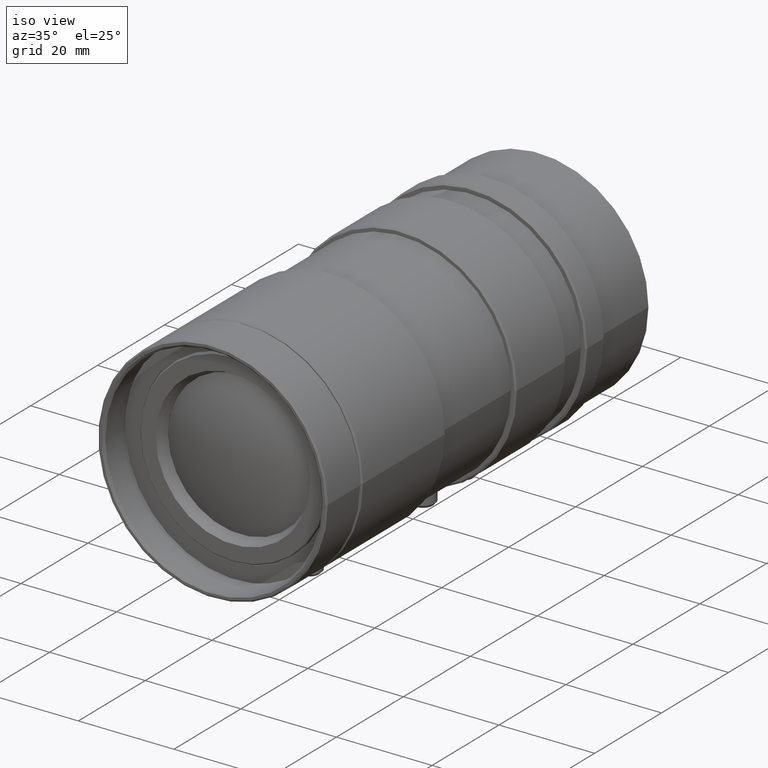
[diagram: clean part render]
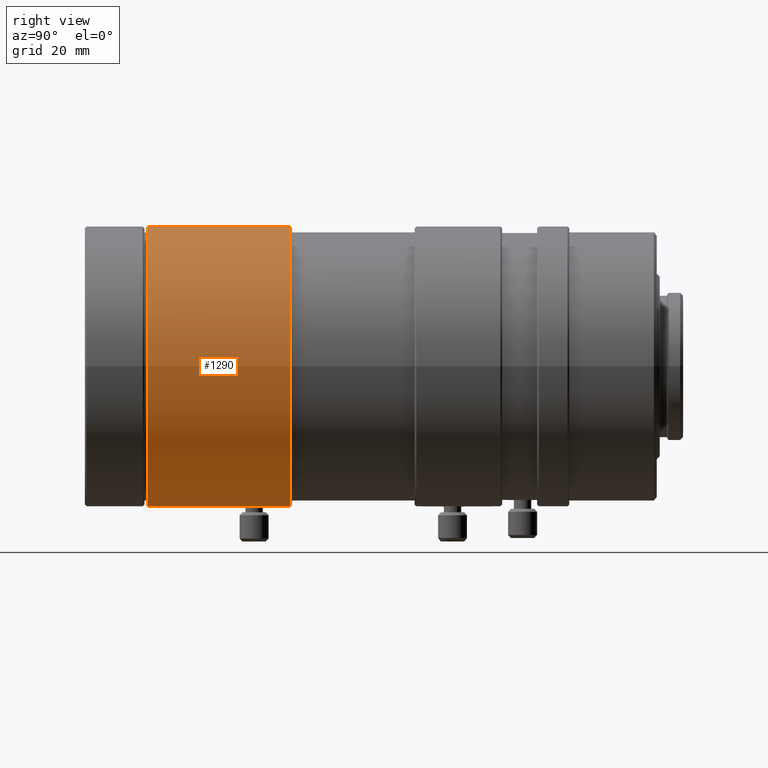
[diagram: tour spotlight — one face highlighted and labeled with its STEP entity id]
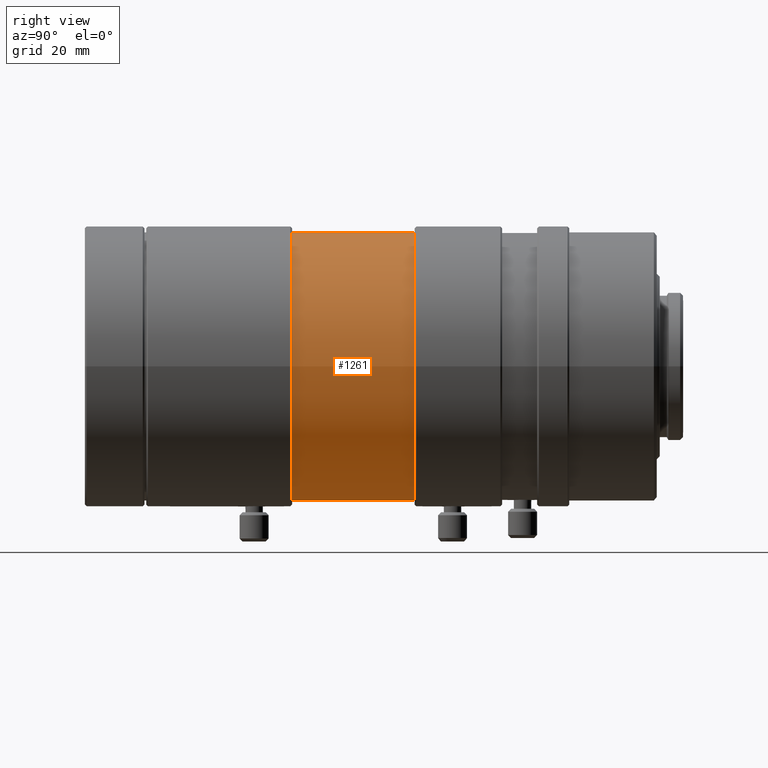
[diagram: tour spotlight — one face highlighted and labeled with its STEP entity id]
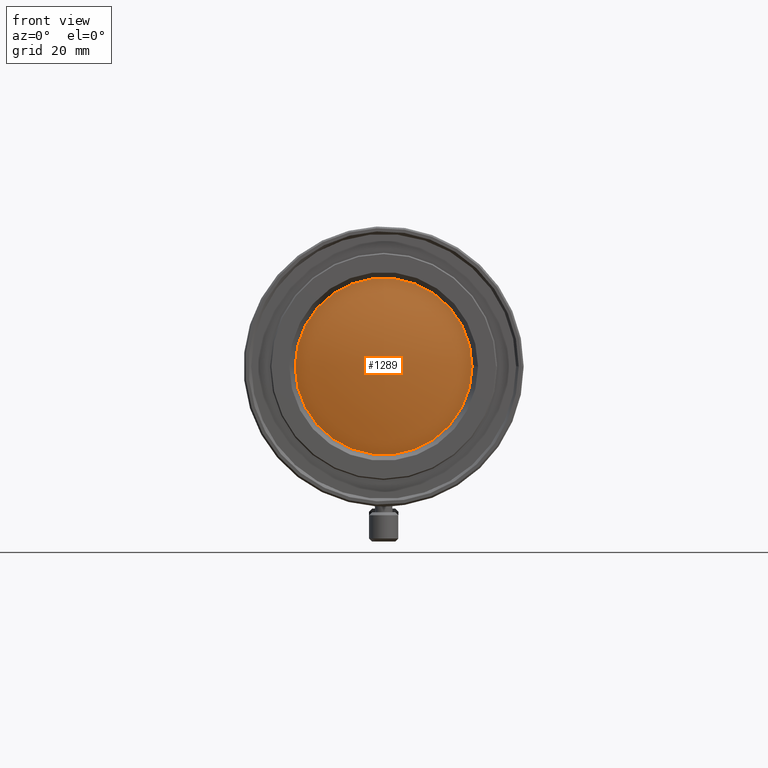
[diagram: tour spotlight — one face highlighted and labeled with its STEP entity id]
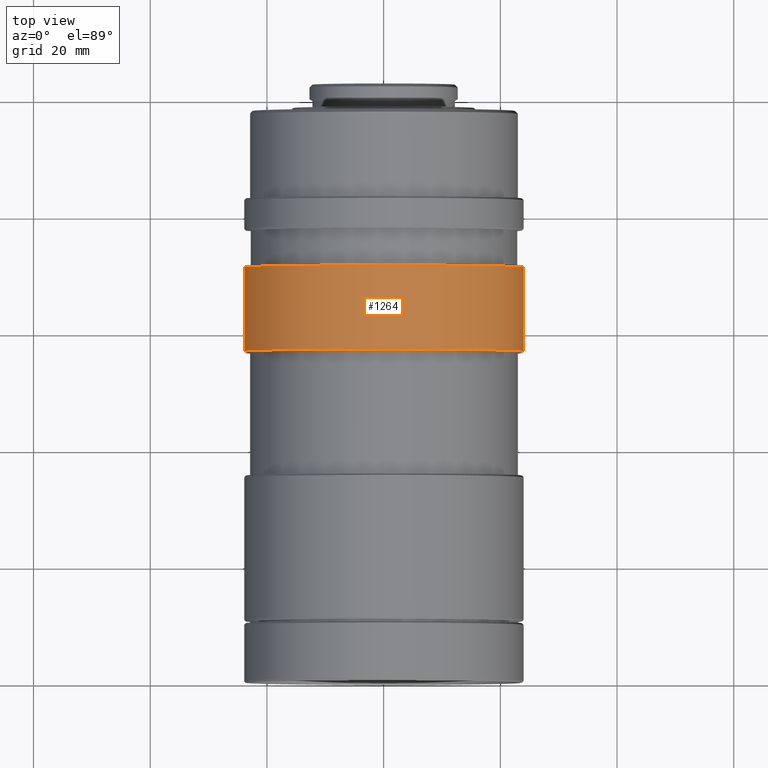
[diagram: tour spotlight — one face highlighted and labeled with its STEP entity id]
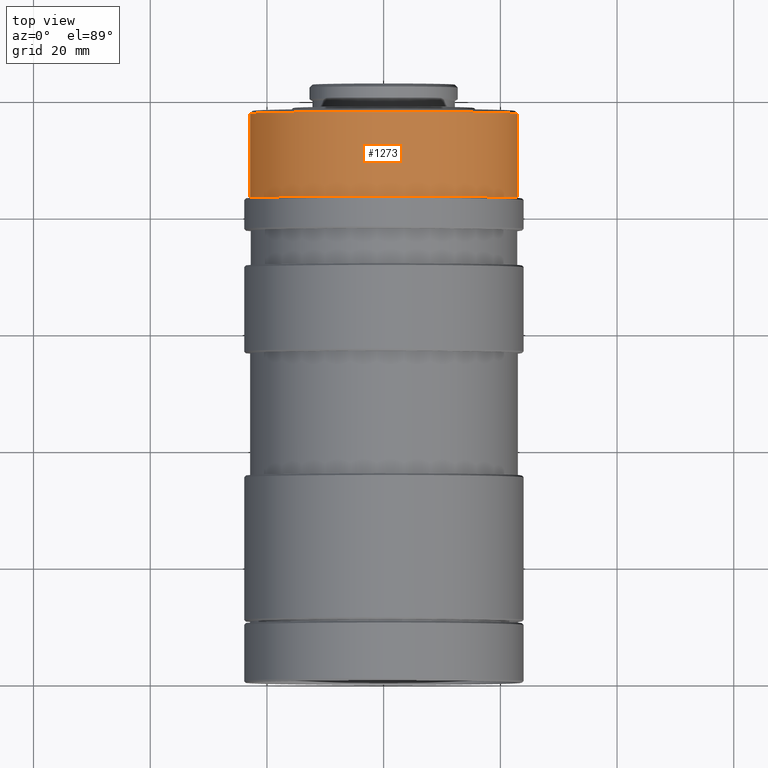
[diagram: tour spotlight — one face highlighted and labeled with its STEP entity id]
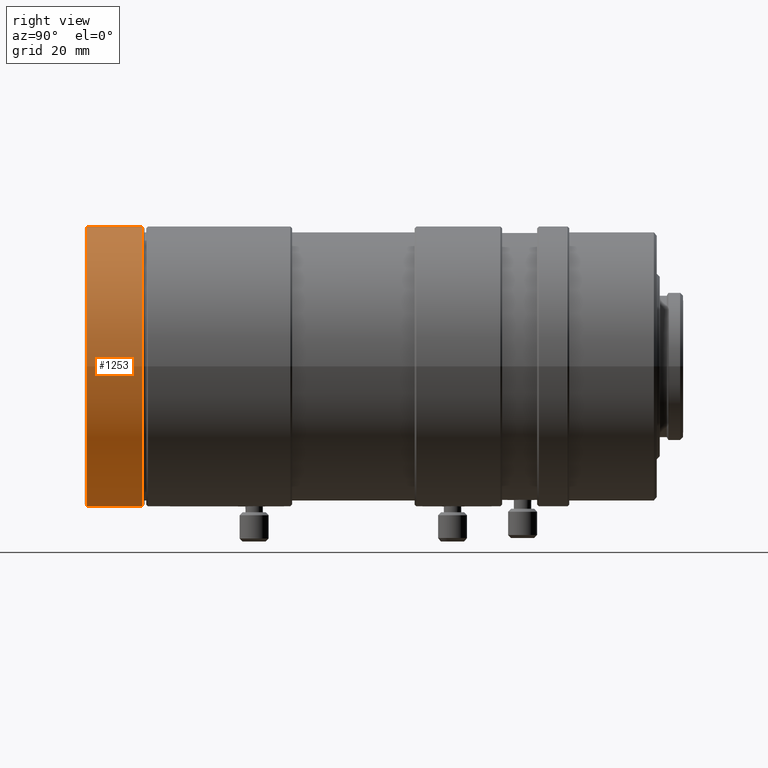
[diagram: tour spotlight — one face highlighted and labeled with its STEP entity id]
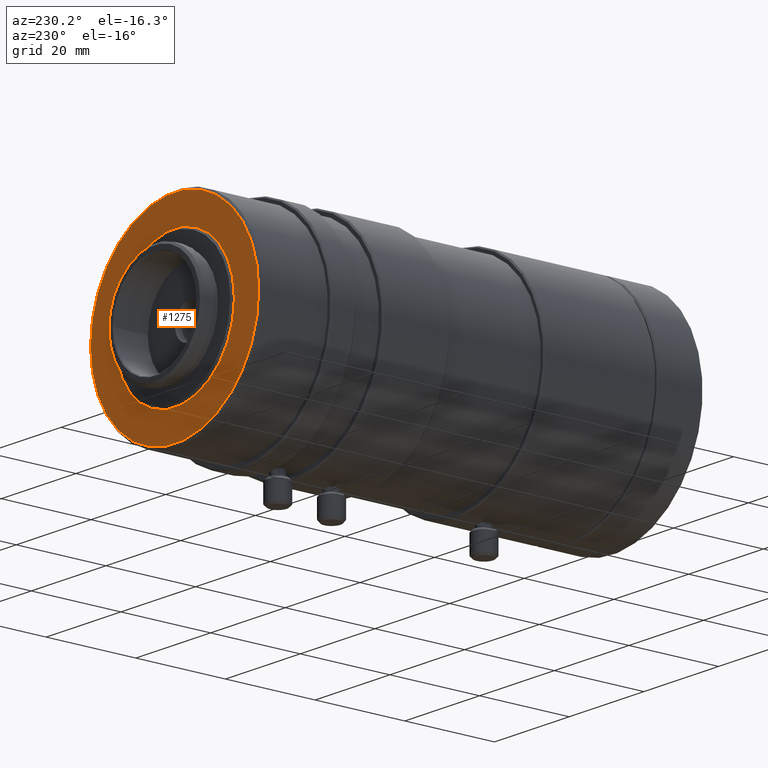
[diagram: tour spotlight — one face highlighted and labeled with its STEP entity id]
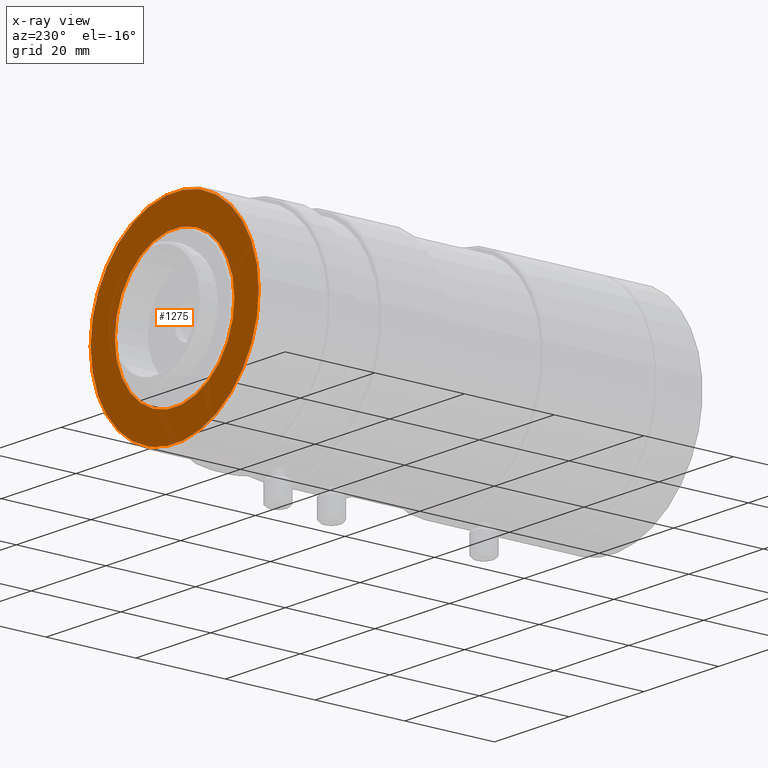
[diagram: x-ray of the same camera — body ghosted, this tour face saturated]
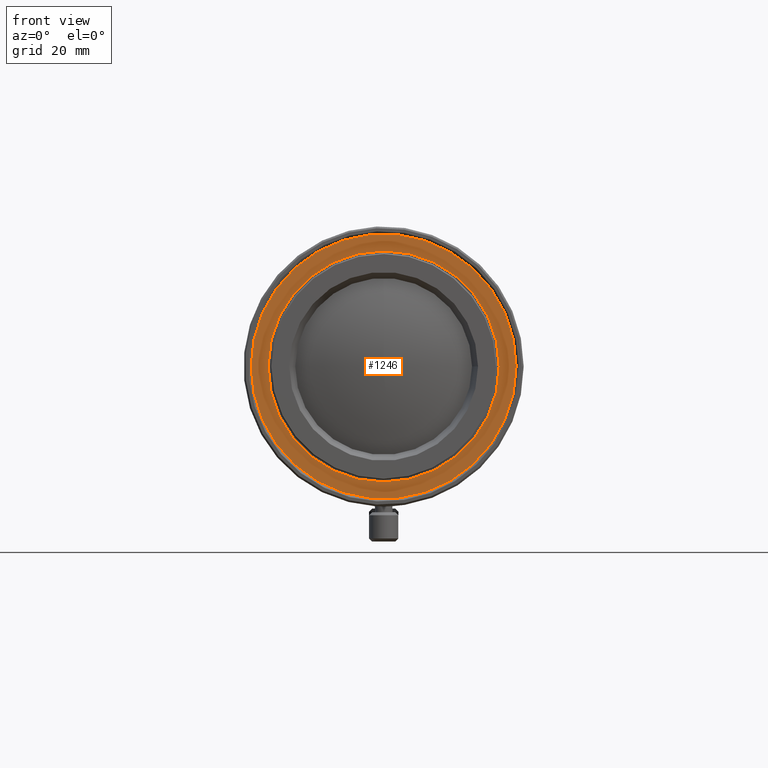
[diagram: tour spotlight — one face highlighted and labeled with its STEP entity id]
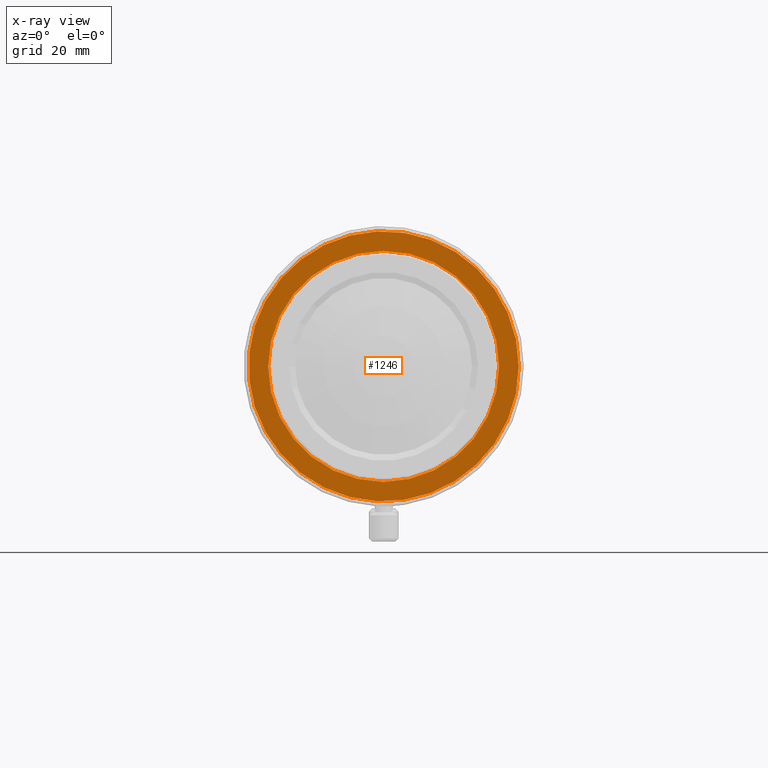
[diagram: x-ray of the same camera — body ghosted, this tour face saturated]
A machine part: a face-by-face anatomy tour. The part has 71 B-rep faces; the first image is the clean iso view, then the 8 largest visible faces are spotlighted one at a time (largest first), each with its STEP entity span.

Face 1 — right view, entity #1290. In plain terms, the highlighted cylindrical surface (bore or boss wall) has radius 24 mm, axis along (-0, -1, 0).
Definition (entity closure, byte-faithful):
#24=B_SPLINE_CURVE_WITH_KNOTS('',3,(#1785,#1786,#1787,#1788,#1789,#1790,
#1791,#1792,#1793,#1794,#1795),.UNSPECIFIED.,.T.,.F.,(1,1,1,1,1,1,1,1,1,
1,1,1,1,1,1),(-0.00351771699218482,-0.00234514466145655,-0.00117257233072827,
0.,0.00117257233072827,0.00234514466145655,0.00351771699218482,0.0046902893229131,
0.00586286165364137,0.00703543398436965,0.00820800631509792,0.0093805786458262,
0.0105531509765545,0.0117257233072827,0.012898295638011),.UNSPECIFIED.);
#65=CYLINDRICAL_SURFACE('',#1433,24.);
#203=ORIENTED_EDGE('',*,*,#223,.F.);
#204=ORIENTED_EDGE('',*,*,#245,.F.);
#205=ORIENTED_EDGE('',*,*,#247,.T.);
#223=EDGE_CURVE('',#293,#293,#24,.T.);
#245=EDGE_CURVE('',#315,#315,#382,.T.);
#247=EDGE_CURVE('',#317,#317,#384,.T.);
#293=VERTEX_POINT('',#1796);
#315=VERTEX_POINT('',#1861);
#317=VERTEX_POINT('',#1866);
#382=CIRCLE('',#1371,24.);
#384=CIRCLE('',#1374,24.);
#550=EDGE_LOOP('',(#203));
#551=EDGE_LOOP('',(#204));
#552=EDGE_LOOP('',(#205));
#690=FACE_BOUND('',#550,.T.);
#691=FACE_BOUND('',#551,.T.);
#692=FACE_BOUND('',#552,.T.);
#1290=ADVANCED_FACE('',(#690,#691,#692),#65,.T.);
#1371=AXIS2_PLACEMENT_3D('',#1860,#1586,#1587);
#1374=AXIS2_PLACEMENT_3D('',#1865,#1592,#1593);
#1433=AXIS2_PLACEMENT_3D('',#1953,#1710,#1711);
#1586=DIRECTION('',(-6.12303176911189E-17,-1.,1.69202101686471E-17));
#1587=DIRECTION('',(1.,-6.12303176911189E-17,0.));
#1592=DIRECTION('',(-6.12303176911189E-17,-1.,1.69202101686471E-17));
#1593=DIRECTION('',(1.,-6.12303176911189E-17,0.));
#1710=DIRECTION('',(-6.12303176911189E-17,-1.,1.69202101686471E-17));
#1711=DIRECTION('',(1.,-6.12303176911189E-17,0.));
#1785=CARTESIAN_POINT('',(-1.17449069305341,27.8232544254815,-23.9766223739688));
#1786=CARTESIAN_POINT('',(-1.66266135198718,29.0002992817742,-23.9413188909608));
#1787=CARTESIAN_POINT('',(-1.17486389899787,30.1755484474217,-23.9765768662297));
#1788=CARTESIAN_POINT('',(-0.00124425309258542,30.6620677322945,-24.011706446079));
#1789=CARTESIAN_POINT('',(1.17500762520638,30.1761793255859,-23.976597268341));
#1790=CARTESIAN_POINT('',(1.66210449397052,29.0002448044713,-23.9413465376293));
#1791=CARTESIAN_POINT('',(1.17657381901401,27.826072269991,-23.9764914214982));
#1792=CARTESIAN_POINT('',(0.0017196521150874,27.3376694415861,-24.0117214814174));
#1793=CARTESIAN_POINT('',(-1.17449069305341,27.8232544254815,-23.9766223739688));
#1794=CARTESIAN_POINT('',(-1.66266135198718,29.0002992817742,-23.9413188909608));
#1795=CARTESIAN_POINT('',(-1.17486389899787,30.1755484474217,-23.9765768662297));
#1796=CARTESIAN_POINT('',(-1.5,29.,-23.953079134007));
#1860=CARTESIAN_POINT('',(6.61287431064084E-16,10.8,-1.82738269821389E-16));
#1861=CARTESIAN_POINT('',(24.,10.8,-1.82738269821389E-16));
#1865=CARTESIAN_POINT('',(2.15530718272738E-15,35.2,-5.95591397936378E-16));
#1866=CARTESIAN_POINT('',(24.,35.2,-5.95591397936378E-16));
#1953=CARTESIAN_POINT('',(0.,0.,0.));

Face 2 — right view, entity #1261. In plain terms, the highlighted cylindrical surface (bore or boss wall) has radius 23 mm, axis along (-0, -1, 0).
Definition (entity closure, byte-faithful):
#58=CYLINDRICAL_SURFACE('',#1377,23.);
#145=ORIENTED_EDGE('',*,*,#249,.T.);
#146=ORIENTED_EDGE('',*,*,#248,.F.);
#248=EDGE_CURVE('',#318,#318,#385,.T.);
#249=EDGE_CURVE('',#319,#319,#386,.T.);
#318=VERTEX_POINT('',#1869);
#319=VERTEX_POINT('',#1872);
#385=CIRCLE('',#1376,23.);
#386=CIRCLE('',#1378,23.);
#492=EDGE_LOOP('',(#145));
#493=EDGE_LOOP('',(#146));
#632=FACE_BOUND('',#492,.T.);
#633=FACE_BOUND('',#493,.T.);
#1261=ADVANCED_FACE('',(#632,#633),#58,.T.);
#1376=AXIS2_PLACEMENT_3D('',#1868,#1596,#1597);
#1377=AXIS2_PLACEMENT_3D('',#1870,#1598,#1599);
#1378=AXIS2_PLACEMENT_3D('',#1871,#1600,#1601);
#1596=DIRECTION('',(-6.12303176911189E-17,-1.,1.69202101686471E-17));
#1597=DIRECTION('',(1.,-6.12303176911189E-17,0.));
#1598=DIRECTION('',(-6.12303176911189E-17,-1.,1.69202101686471E-17));
#1599=DIRECTION('',(1.,-6.12303176911189E-17,0.));
#1600=DIRECTION('',(-6.12303176911189E-17,-1.,1.69202101686471E-17));
#1601=DIRECTION('',(1.,-6.12303176911189E-17,0.));
#1868=CARTESIAN_POINT('',(2.17367627803472E-15,35.5,-6.00667460986972E-16));
#1869=CARTESIAN_POINT('',(23.,35.5,-6.00667460986972E-16));
#1870=CARTESIAN_POINT('',(0.,0.,0.));
#1871=CARTESIAN_POINT('',(3.45951294954822E-15,56.5,-9.55991874528561E-16));
#1872=CARTESIAN_POINT('',(23.,56.5,-9.55991874528561E-16));

Face 3 — front view, entity #1289. In plain terms, the highlighted spherical surface has radius 45.661 mm.
Definition (entity closure, byte-faithful):
#21=SPHERICAL_SURFACE('',#1432,45.660999999999);
#202=ORIENTED_EDGE('',*,*,#225,.T.);
#225=EDGE_CURVE('',#295,#295,#362,.T.);
#295=VERTEX_POINT('',#1801);
#362=CIRCLE('',#1331,15.25);
#549=EDGE_LOOP('',(#202));
#689=FACE_BOUND('',#549,.T.);
#1289=ADVANCED_FACE('',(#689),#21,.T.);
#1331=AXIS2_PLACEMENT_3D('',#1800,#1506,#1507);
#1432=AXIS2_PLACEMENT_3D('',#1952,#1708,#1709);
#1506=DIRECTION('',(-6.12303176911189E-17,-1.,1.69202101686471E-17));
#1507=DIRECTION('',(1.,-6.12303176911189E-17,0.));
#1708=DIRECTION('',(-6.12303176911189E-17,-1.,1.69202101686471E-17));
#1709=DIRECTION('',(1.03602984402676E-33,1.69202101686471E-17,1.));
#1800=CARTESIAN_POINT('',(5.25839637454996E-16,8.58789660552858,-1.45309015472155E-16));
#1801=CARTESIAN_POINT('',(15.25,8.58789660552858,-1.45309015472155E-16));
#1952=CARTESIAN_POINT('',(3.16113761143933E-15,51.626999999999,1.86482773667507E-13));

Face 4 — top view, entity #1264. In plain terms, the highlighted cylindrical surface (bore or boss wall) has radius 24 mm, axis along (-0, -1, 0).
Definition (entity closure, byte-faithful):
#23=B_SPLINE_CURVE_WITH_KNOTS('',3,(#1757,#1758,#1759,#1760,#1761,#1762,
#1763,#1764,#1765,#1766,#1767),.UNSPECIFIED.,.T.,.F.,(1,1,1,1,1,1,1,1,1,
1,1,1,1,1,1),(-0.00351771699218482,-0.00234514466145655,-0.00117257233072827,
0.,0.00117257233072827,0.00234514466145655,0.00351771699218482,0.0046902893229131,
0.00586286165364137,0.00703543398436964,0.00820800631509792,0.00938057864582619,
0.0105531509765545,0.0117257233072827,0.012898295638011),.UNSPECIFIED.);
#59=CYLINDRICAL_SURFACE('',#1383,24.);
#151=ORIENTED_EDGE('',*,*,#252,.T.);
#152=ORIENTED_EDGE('',*,*,#251,.F.);
#153=ORIENTED_EDGE('',*,*,#217,.T.);
#217=EDGE_CURVE('',#287,#287,#23,.T.);
#251=EDGE_CURVE('',#321,#321,#388,.T.);
#252=EDGE_CURVE('',#322,#322,#389,.T.);
#287=VERTEX_POINT('',#1768);
#321=VERTEX_POINT('',#1878);
#322=VERTEX_POINT('',#1881);
#388=CIRCLE('',#1382,24.);
#389=CIRCLE('',#1384,24.);
#498=EDGE_LOOP('',(#151));
#499=EDGE_LOOP('',(#152));
#500=EDGE_LOOP('',(#153));
#638=FACE_BOUND('',#498,.T.);
#639=FACE_BOUND('',#499,.T.);
#640=FACE_BOUND('',#500,.T.);
#1264=ADVANCED_FACE('',(#638,#639,#640),#59,.T.);
#1382=AXIS2_PLACEMENT_3D('',#1877,#1608,#1609);
#1383=AXIS2_PLACEMENT_3D('',#1879,#1610,#1611);
#1384=AXIS2_PLACEMENT_3D('',#1880,#1612,#1613);
#1608=DIRECTION('',(-6.12303176911189E-17,-1.,1.69202101686471E-17));
#1609=DIRECTION('',(1.,-6.12303176911189E-17,0.));
#1610=DIRECTION('',(-6.12303176911189E-17,-1.,1.69202101686471E-17));
#1611=DIRECTION('',(1.,-6.12303176911189E-17,0.));
#1612=DIRECTION('',(-6.12303176911189E-17,-1.,1.69202101686471E-17));
#1613=DIRECTION('',(1.,-6.12303176911189E-17,0.));
#1757=CARTESIAN_POINT('',(-1.1744906930534,64.1767455745185,-23.9766223739688));
#1758=CARTESIAN_POINT('',(-1.66266135198718,62.9997007182258,-23.9413188909608));
#1759=CARTESIAN_POINT('',(-1.17486389899787,61.8244515525783,-23.9765768662297));
#1760=CARTESIAN_POINT('',(-0.0012442530925839,61.3379322677055,-24.011706446079));
#1761=CARTESIAN_POINT('',(1.17500762520638,61.8238206744141,-23.976597268341));
#1762=CARTESIAN_POINT('',(1.66210449397052,62.9997551955287,-23.9413465376293));
#1763=CARTESIAN_POINT('',(1.17657381901401,64.173927730009,-23.9764914214982));
#1764=CARTESIAN_POINT('',(0.00171965211509176,64.6623305584139,-24.0117214814174));
#1765=CARTESIAN_POINT('',(-1.1744906930534,64.1767455745185,-23.9766223739688));
#1766=CARTESIAN_POINT('',(-1.66266135198718,62.9997007182258,-23.9413188909608));
#1767=CARTESIAN_POINT('',(-1.17486389899787,61.8244515525783,-23.9765768662297));
#1768=CARTESIAN_POINT('',(-1.5,63.,-23.953079134007));
#1877=CARTESIAN_POINT('',(3.47788204485555E-15,56.8,-9.61067937579155E-16));
#1878=CARTESIAN_POINT('',(24.,56.8,-9.61067937579155E-16));
#1879=CARTESIAN_POINT('',(0.,0.,0.));
#1880=CARTESIAN_POINT('',(4.35959861960766E-15,71.2,-1.20471896400767E-15));
#1881=CARTESIAN_POINT('',(24.,71.2,-1.20471896400767E-15));

Face 5 — top view, entity #1273. In plain terms, the highlighted cylindrical surface (bore or boss wall) has radius 23 mm, axis along (-0, -1, 0).
Definition (entity closure, byte-faithful):
#62=CYLINDRICAL_SURFACE('',#1401,23.);
#171=ORIENTED_EDGE('',*,*,#261,.T.);
#172=ORIENTED_EDGE('',*,*,#260,.F.);
#260=EDGE_CURVE('',#330,#330,#397,.T.);
#261=EDGE_CURVE('',#331,#331,#398,.T.);
#330=VERTEX_POINT('',#1905);
#331=VERTEX_POINT('',#1908);
#397=CIRCLE('',#1400,23.);
#398=CIRCLE('',#1402,23.);
#518=EDGE_LOOP('',(#171));
#519=EDGE_LOOP('',(#172));
#658=FACE_BOUND('',#518,.T.);
#659=FACE_BOUND('',#519,.T.);
#1273=ADVANCED_FACE('',(#658,#659),#62,.T.);
#1400=AXIS2_PLACEMENT_3D('',#1904,#1644,#1645);
#1401=AXIS2_PLACEMENT_3D('',#1906,#1646,#1647);
#1402=AXIS2_PLACEMENT_3D('',#1907,#1648,#1649);
#1644=DIRECTION('',(-6.12303176911189E-17,-1.,1.69202101686471E-17));
#1645=DIRECTION('',(1.,-6.12303176911189E-17,0.));
#1646=DIRECTION('',(-6.12303176911189E-17,-1.,1.69202101686471E-17));
#1647=DIRECTION('',(1.,-6.12303176911189E-17,0.));
#1648=DIRECTION('',(-6.12303176911189E-17,-1.,1.69202101686471E-17));
#1649=DIRECTION('',(1.,-6.12303176911189E-17,0.));
#1904=CARTESIAN_POINT('',(5.08211636836287E-15,83.,-1.40437744399771E-15));
#1905=CARTESIAN_POINT('',(23.,83.,-1.40437744399771E-15));
#1906=CARTESIAN_POINT('',(0.,0.,0.));
#1907=CARTESIAN_POINT('',(5.9699559726429E-15,97.4999999633974,-1.64972049082377E-15));
#1908=CARTESIAN_POINT('',(23.,97.4999999633974,-1.64972049082377E-15));

Face 6 — right view, entity #1253. In plain terms, the highlighted cylindrical surface (bore or boss wall) has radius 24 mm, axis along (-0, -1, 0).
Definition (entity closure, byte-faithful):
#56=CYLINDRICAL_SURFACE('',#1360,24.);
#129=ORIENTED_EDGE('',*,*,#240,.T.);
#130=ORIENTED_EDGE('',*,*,#239,.F.);
#239=EDGE_CURVE('',#309,#309,#376,.T.);
#240=EDGE_CURVE('',#310,#310,#377,.T.);
#309=VERTEX_POINT('',#1843);
#310=VERTEX_POINT('',#1846);
#376=CIRCLE('',#1359,24.);
#377=CIRCLE('',#1361,24.);
#476=EDGE_LOOP('',(#129));
#477=EDGE_LOOP('',(#130));
#616=FACE_BOUND('',#476,.T.);
#617=FACE_BOUND('',#477,.T.);
#1253=ADVANCED_FACE('',(#616,#617),#56,.T.);
#1359=AXIS2_PLACEMENT_3D('',#1842,#1562,#1563);
#1360=AXIS2_PLACEMENT_3D('',#1844,#1564,#1565);
#1361=AXIS2_PLACEMENT_3D('',#1845,#1566,#1567);
#1562=DIRECTION('',(-6.12303176911189E-17,-1.,1.69202101686471E-17));
#1563=DIRECTION('',(1.,-6.12303176911189E-17,0.));
#1564=DIRECTION('',(-6.12303176911189E-17,-1.,1.69202101686471E-17));
#1565=DIRECTION('',(1.,-6.12303176911189E-17,0.));
#1566=DIRECTION('',(-6.12303176911189E-17,-1.,1.69202101686471E-17));
#1567=DIRECTION('',(1.,-6.12303176911189E-17,0.));
#1842=CARTESIAN_POINT('',(1.83690953073353E-17,0.299999999999994,-5.07606305059403E-18));
#1843=CARTESIAN_POINT('',(24.,0.299999999999993,-5.07606305059403E-18));
#1844=CARTESIAN_POINT('',(0.,0.,0.));
#1845=CARTESIAN_POINT('',(6.06180145142077E-16,9.9,-1.67510080669606E-16));
#1846=CARTESIAN_POINT('',(24.,9.9,-1.67510080669606E-16));

Face 7 — auxiliary view, entity #1275. An x-ray twin of the same camera follows (body ghosted, this face saturated) — the face is partly hidden behind the body. In plain terms, the highlighted planar face has unit normal (-0, -1, 0).
Definition (entity closure, byte-faithful):
#42=PLANE('',#1405);
#175=ORIENTED_EDGE('',*,*,#263,.T.);
#176=ORIENTED_EDGE('',*,*,#262,.F.);
#262=EDGE_CURVE('',#332,#332,#399,.T.);
#263=EDGE_CURVE('',#333,#333,#400,.T.);
#332=VERTEX_POINT('',#1911);
#333=VERTEX_POINT('',#1914);
#399=CIRCLE('',#1404,22.5);
#400=CIRCLE('',#1406,16.);
#522=EDGE_LOOP('',(#175));
#523=EDGE_LOOP('',(#176));
#662=FACE_BOUND('',#522,.T.);
#663=FACE_BOUND('',#523,.T.);
#1275=ADVANCED_FACE('',(#662,#663),#42,.F.);
#1404=AXIS2_PLACEMENT_3D('',#1910,#1652,#1653);
#1405=AXIS2_PLACEMENT_3D('',#1912,#1654,#1655);
#1406=AXIS2_PLACEMENT_3D('',#1913,#1656,#1657);
#1652=DIRECTION('',(-6.12303176911189E-17,-1.,1.69202101686471E-17));
#1653=DIRECTION('',(1.,-6.12303176911189E-17,0.));
#1654=DIRECTION('',(-6.12303176911189E-17,-1.,1.69202101686471E-17));
#1655=DIRECTION('',(1.,-6.12303176911189E-17,0.));
#1656=DIRECTION('',(-6.12303176911189E-17,-1.,1.69202101686471E-17));
#1657=DIRECTION('',(1.,-6.12303176911189E-17,0.));
#1910=CARTESIAN_POINT('',(6.00057113372965E-15,98.,-1.65818059652742E-15));
#1911=CARTESIAN_POINT('',(22.5,98.,-1.65818059652742E-15));
#1912=CARTESIAN_POINT('',(6.00057113372965E-15,98.,22.5));
#1913=CARTESIAN_POINT('',(6.00057113372965E-15,98.,-1.65818059652742E-15));
#1914=CARTESIAN_POINT('',(16.,98.,-1.65818059652742E-15));

Face 8 — front view, entity #1246. An x-ray twin of the same camera follows (body ghosted, this face saturated) — the face is partly hidden behind the body. In plain terms, the highlighted planar face has unit normal (0, 1, -0).
Definition (entity closure, byte-faithful):
#33=PLANE('',#1346);
#115=ORIENTED_EDGE('',*,*,#233,.T.);
#116=ORIENTED_EDGE('',*,*,#232,.F.);
#232=EDGE_CURVE('',#302,#302,#369,.T.);
#233=EDGE_CURVE('',#303,#303,#370,.T.);
#302=VERTEX_POINT('',#1822);
#303=VERTEX_POINT('',#1825);
#369=CIRCLE('',#1345,19.8);
#370=CIRCLE('',#1347,23.15);
#462=EDGE_LOOP('',(#115));
#463=EDGE_LOOP('',(#116));
#602=FACE_BOUND('',#462,.T.);
#603=FACE_BOUND('',#463,.T.);
#1246=ADVANCED_FACE('',(#602,#603),#33,.F.);
#1345=AXIS2_PLACEMENT_3D('',#1821,#1534,#1535);
#1346=AXIS2_PLACEMENT_3D('',#1823,#1536,#1537);
#1347=AXIS2_PLACEMENT_3D('',#1824,#1538,#1539);
#1534=DIRECTION('',(-6.12303176911189E-17,-1.,1.69202101686471E-17));
#1535=DIRECTION('',(1.,-6.12303176911189E-17,0.));
#1536=DIRECTION('',(6.12303176911189E-17,1.,-1.69202101686471E-17));
#1537=DIRECTION('',(-1.,6.12303176911189E-17,0.));
#1538=DIRECTION('',(-6.12303176911189E-17,-1.,1.69202101686471E-17));
#1539=DIRECTION('',(1.,-6.12303176911189E-17,0.));
#1821=CARTESIAN_POINT('',(4.302042120978E-16,7.02599999999998,-1.18881396644914E-16));
#1822=CARTESIAN_POINT('',(19.8,7.02599999999998,-1.18881396644914E-16));
#1823=CARTESIAN_POINT('',(4.302042120978E-16,7.02599999999998,19.8));
#1824=CARTESIAN_POINT('',(4.302042120978E-16,7.02599999999998,-1.18881396644914E-16));
#1825=CARTESIAN_POINT('',(23.15,7.02599999999998,-1.18881396644914E-16));